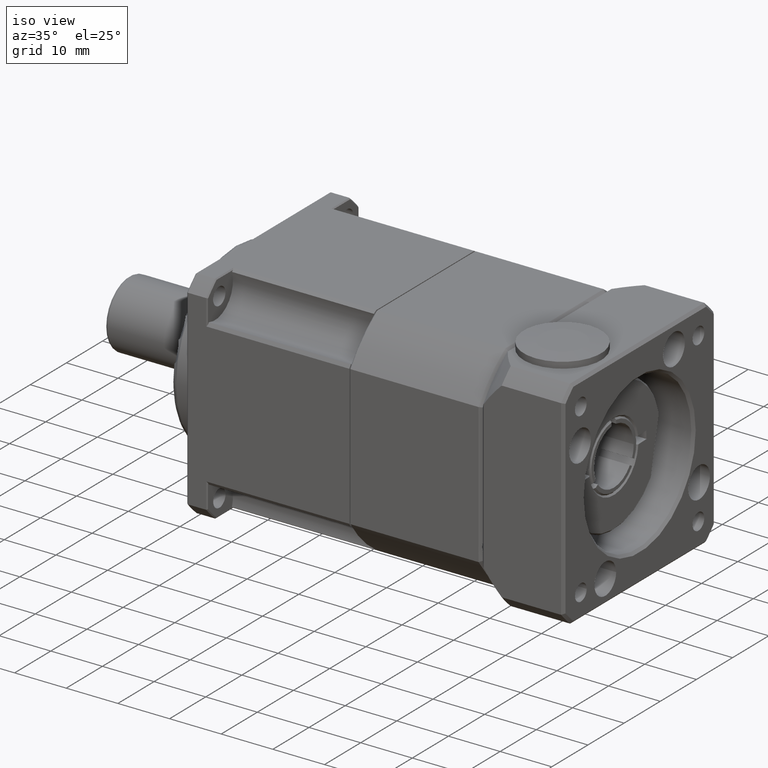
[diagram: clean part render]
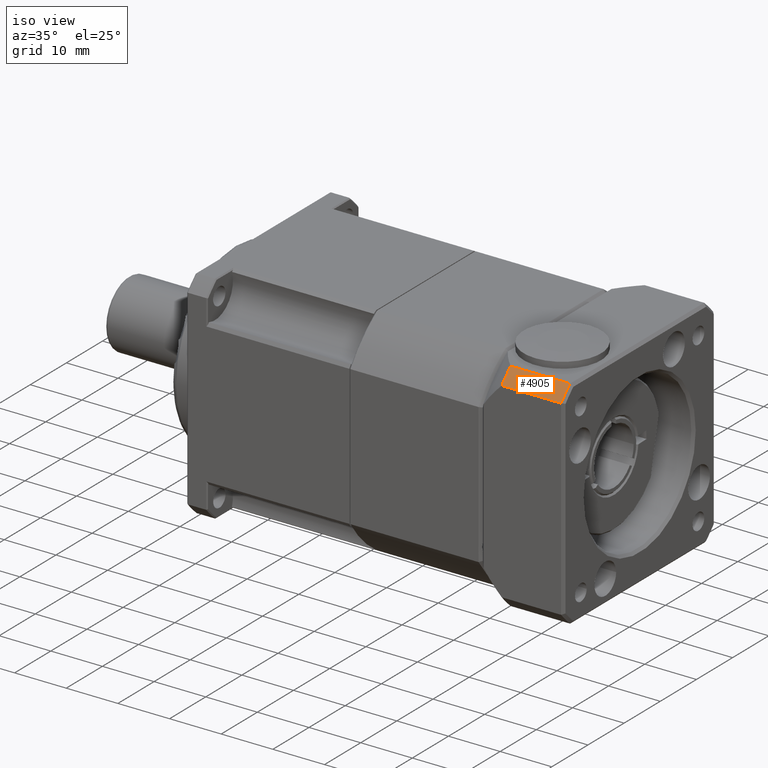
[diagram: same view with one face highlighted and labeled with its STEP entity id]
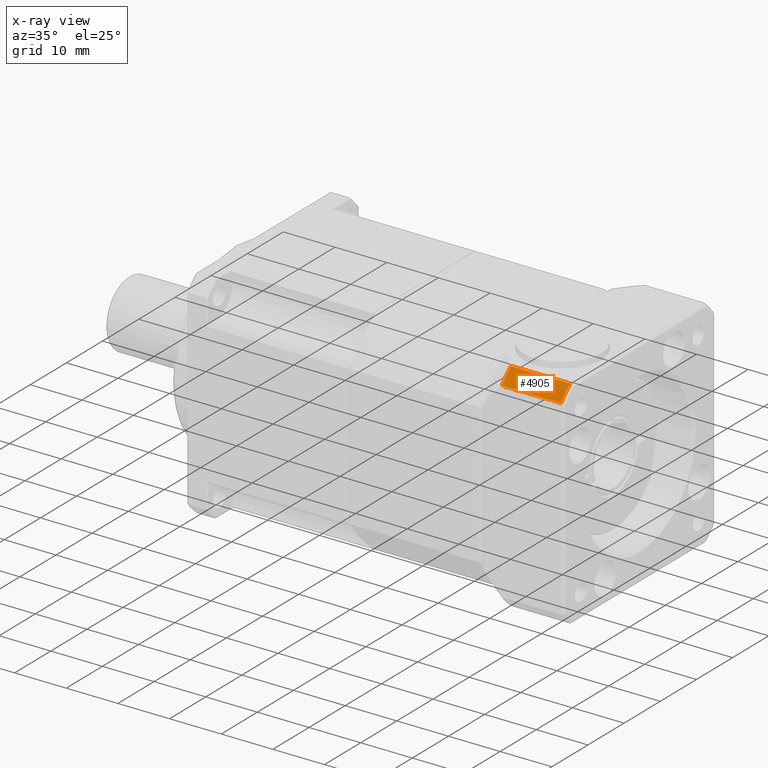
[diagram: x-ray of the same camera — body ghosted, the highlighted face saturated]
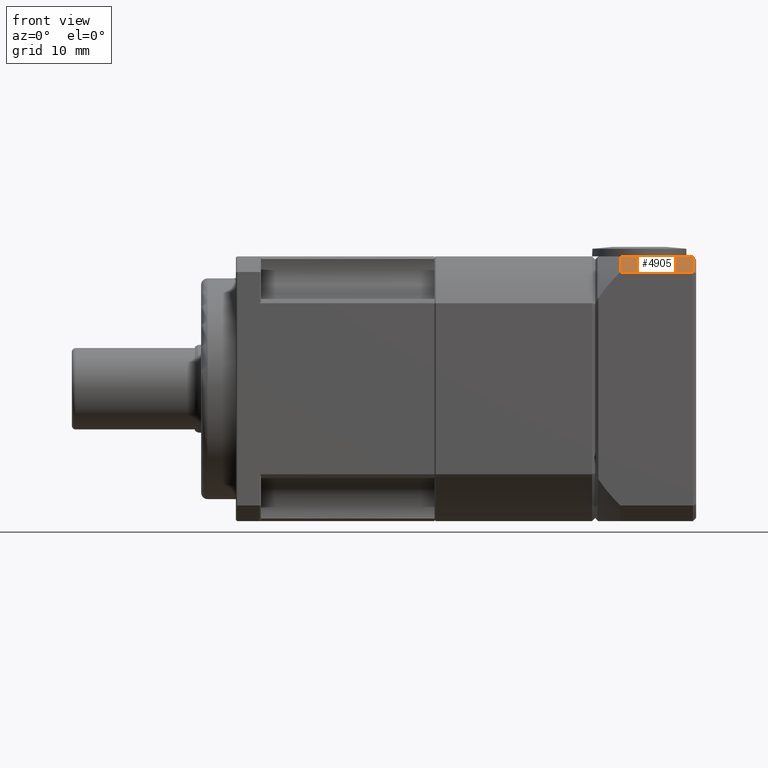
[diagram: same view with one face highlighted and labeled with its STEP entity id]
A machine part, iso view. The second image highlights one B-rep face of the part: STEP entity #4905.
The next image is the same camera in x-ray: the body ghosted, the highlighted face saturated — about 0% of this face is hidden behind the body in this view.
A second angle (front view) of the same face is appended — the face is thin or edge-on in the first view.
In plain terms, the highlighted cylindrical surface (partial cylindrical patch) has radius 28 mm, axis along (-1, 0, 0).
Its self-contained STEP definition (entity closure, byte-faithful):
#337=LINE('',#8045,#571);
#339=LINE('',#8053,#573);
#571=VECTOR('',#6353,11.5014761628236);
#573=VECTOR('',#6361,11.5014761628236);
#1118=FACE_OUTER_BOUND('',#1493,.T.);
#1493=EDGE_LOOP('',(#3703,#3704,#3705,#3706));
#1906=CIRCLE('',#5354,28.);
#1911=CIRCLE('',#5362,28.);
#2279=VERTEX_POINT('',#7974);
#2290=VERTEX_POINT('',#8026);
#2294=VERTEX_POINT('',#8044);
#2297=VERTEX_POINT('',#8052);
#2813=EDGE_CURVE('',#2279,#2290,#1906,.T.);
#2818=EDGE_CURVE('',#2290,#2294,#337,.T.);
#2822=EDGE_CURVE('',#2297,#2279,#339,.T.);
#2823=EDGE_CURVE('',#2297,#2294,#1911,.T.);
#3703=ORIENTED_EDGE('',*,*,#2813,.F.);
#3704=ORIENTED_EDGE('',*,*,#2822,.F.);
#3705=ORIENTED_EDGE('',*,*,#2823,.T.);
#3706=ORIENTED_EDGE('',*,*,#2818,.F.);
#4503=CYLINDRICAL_SURFACE('',#5361,28.);
#4905=ADVANCED_FACE('',(#1118),#4503,.T.);
#5354=AXIS2_PLACEMENT_3D('',#8035,#6341,#6342);
#5361=AXIS2_PLACEMENT_3D('',#8051,#6359,#6360);
#5362=AXIS2_PLACEMENT_3D('',#8054,#6362,#6363);
#6341=DIRECTION('center_axis',(1.,-3.09496634439259E-16,-1.95245496793417E-15));
#6342=DIRECTION('ref_axis',(1.95245496793418E-15,8.39606162372704E-15,1.));
#6353=DIRECTION('',(-1.,3.09496634439259E-16,1.95245496793417E-15));
#6359=DIRECTION('center_axis',(-1.,3.09496634439259E-16,1.95245496793417E-15));
#6360=DIRECTION('ref_axis',(-1.95245496793418E-15,-8.39606162372704E-15,
-1.));
#6361=DIRECTION('',(1.,-3.09496634439259E-16,-1.95245496793417E-15));
#6362=DIRECTION('center_axis',(1.,-3.09496634439259E-16,-1.95245496793417E-15));
#6363=DIRECTION('ref_axis',(-1.95245496793418E-15,-8.39606162372704E-15,
-1.));
#7974=CARTESIAN_POINT('',(33.7159950143863,-57.3877443093644,-6.34775529413315));
#8026=CARTESIAN_POINT('',(33.7159950143863,-59.8674851319123,-8.827496116681));
#8035=CARTESIAN_POINT('Origin',(33.7159950143862,-38.8674851319124,-27.3477552941333));
#8044=CARTESIAN_POINT('',(22.2145188515627,-59.8674851319123,-8.82749611668098));
#8045=CARTESIAN_POINT('',(34.2159950143863,-59.8674851319123,-8.827496116681));
#8051=CARTESIAN_POINT('Origin',(34.2159950143862,-38.8674851319124,-27.3477552941333));
#8052=CARTESIAN_POINT('',(22.2145188515627,-57.3877443093644,-6.34775529413313));
#8053=CARTESIAN_POINT('',(34.2159950143863,-57.3877443093644,-6.34775529413315));
#8054=CARTESIAN_POINT('Origin',(22.2145188515627,-38.8674851319124,-27.3477552941333));